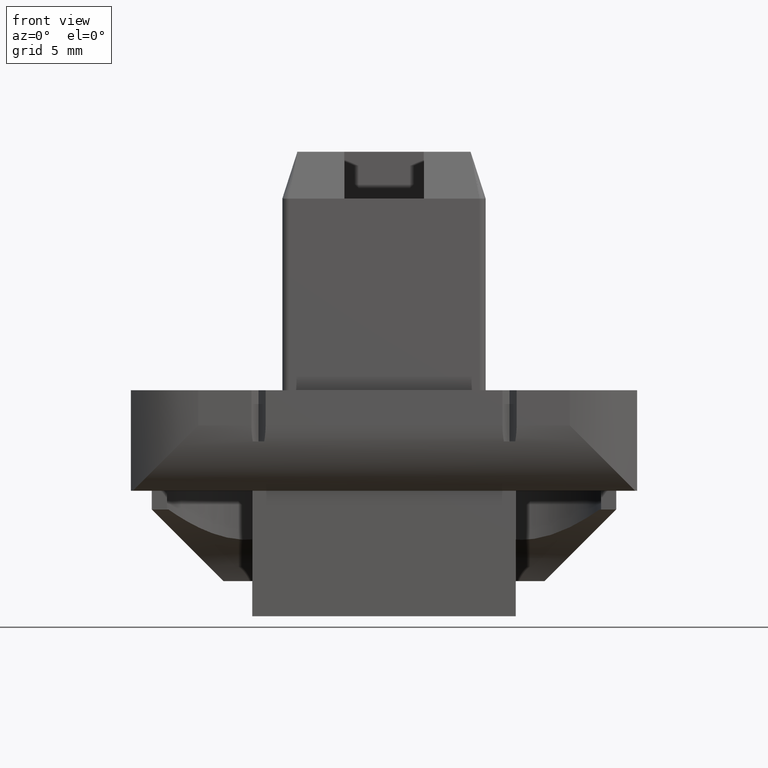
[diagram: clean part render]
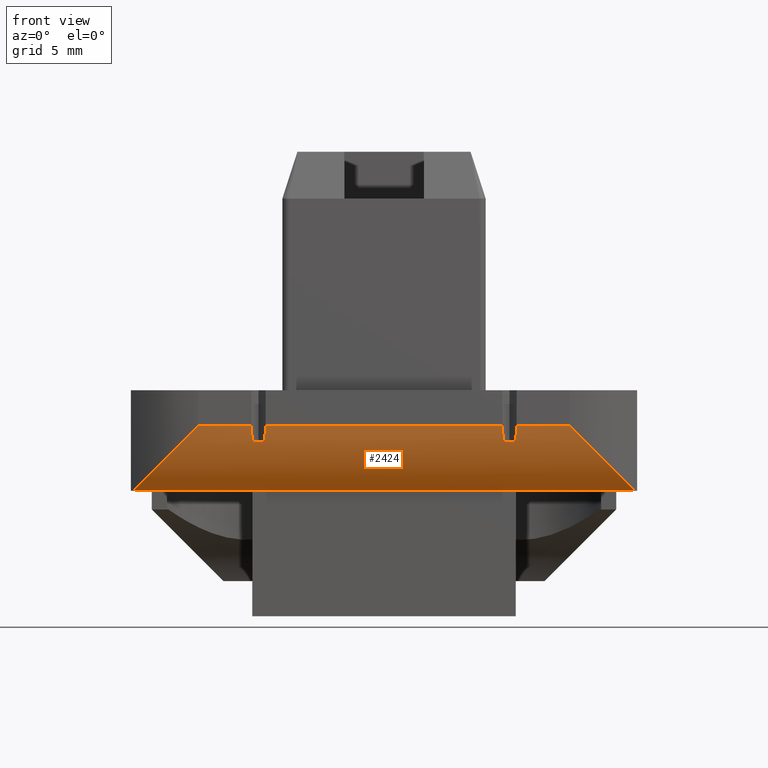
[diagram: same view with one face highlighted and labeled with its STEP entity id]
A machine part, front view. The second image highlights one B-rep face of the part: STEP entity #2424.
In plain terms, the highlighted cylindrical surface (partial cylindrical patch) has radius 7.2 mm, axis along (-1, 0, 0).
Its self-contained STEP definition (entity closure, byte-faithful):
#646=CARTESIAN_POINT('',(-20.000000287660441,-3.779959486906443,10.000000040422265));
#647=VERTEX_POINT('',#646);
#655=CARTESIAN_POINT('',(-14.799999999717329,-5.999999814166940,15.200000118723892));
#656=VERTEX_POINT('',#655);
#657=CARTESIAN_POINT('',(-14.799999999717329,-5.999999674799891,15.200000118723892));
#658=CARTESIAN_POINT('',(-15.250644298641419,-5.999999686430827,14.749355819799348));
#659=CARTESIAN_POINT('',(-16.149694925146832,-5.915854934225826,13.850307594689866));
#660=CARTESIAN_POINT('',(-17.549310883579892,-5.511476772912197,12.450689448180469));
#661=CARTESIAN_POINT('',(-18.854993704625485,-4.816792600913022,11.145006873995726));
#662=CARTESIAN_POINT('',(-19.666471730259218,-4.128225077868677,10.333528642601436));
#663=CARTESIAN_POINT('',(-20.000000287660441,-3.779959486906442,10.000000040422265));
#664=B_SPLINE_CURVE_WITH_KNOTS('',3,(#657,#658,#659,#660,#661,#662,#663),.UNSPECIFIED.,.F.,.U.,(4,1,1,1,4),(0.0,1.913345295107791,3.812113671887405,6.046940341447570,7.808132492264156),.UNSPECIFIED.);
#665=EDGE_CURVE('',#656,#647,#664,.T.);
#691=CARTESIAN_POINT('',(-10.565685424666299,-5.999999535432692,15.200000118723892));
#692=VERTEX_POINT('',#691);
#693=CARTESIAN_POINT('',(-14.799999999717329,-5.999999535432692,15.200000118723866));
#694=DIRECTION('',(1.0,0.0,0.0));
#695=VECTOR('',#694,4.234314575051037);
#696=LINE('',#693,#695);
#697=EDGE_CURVE('',#656,#692,#696,.T.);
#722=CARTESIAN_POINT('',(14.800000000283035,-5.999999814166757,15.200000118723779));
#723=VERTEX_POINT('',#722);
#740=CARTESIAN_POINT('',(10.565685425232004,-5.999999535432692,15.200000118723779));
#741=VERTEX_POINT('',#740);
#748=CARTESIAN_POINT('',(10.565685425232004,-5.999999535432692,15.200000118723832));
#749=DIRECTION('',(1.0,0.0,0.0));
#750=VECTOR('',#749,4.234314575051030);
#751=LINE('',#748,#750);
#752=EDGE_CURVE('',#741,#723,#751,.T.);
#764=CARTESIAN_POINT('',(-9.434314574767996,-5.999999535432692,15.200000118723892));
#765=VERTEX_POINT('',#764);
#772=CARTESIAN_POINT('',(9.434314575333701,-5.999999535432692,15.200000118723779));
#773=VERTEX_POINT('',#772);
#774=CARTESIAN_POINT('',(-9.434314574767988,-5.999999535432692,15.200000118723858));
#775=DIRECTION('',(1.0,0.0,0.0));
#776=VECTOR('',#775,18.868629150101690);
#777=LINE('',#774,#776);
#778=EDGE_CURVE('',#765,#773,#777,.T.);
#820=CARTESIAN_POINT('',(20.000000288226147,-3.779959486906443,10.000000040422265));
#821=VERTEX_POINT('',#820);
#822=CARTESIAN_POINT('',(20.000000288226147,-3.779959486906273,10.000000040422265));
#823=CARTESIAN_POINT('',(19.666471730824924,-4.128225077868504,10.333528642601436));
#824=CARTESIAN_POINT('',(18.854993705190282,-4.816792600912875,11.145006873995158));
#825=CARTESIAN_POINT('',(17.549310884143779,-5.511476772911907,12.450689448179787));
#826=CARTESIAN_POINT('',(16.149694925713447,-5.915854934225632,13.850307594688388));
#827=CARTESIAN_POINT('',(15.250644299208034,-5.999999686430661,14.749355819799121));
#828=CARTESIAN_POINT('',(14.800000000283035,-5.999999674799725,15.200000118723779));
#829=B_SPLINE_CURVE_WITH_KNOTS('',3,(#822,#823,#824,#825,#826,#827,#828),.UNSPECIFIED.,.F.,.U.,(4,1,1,1,4),(0.0,1.761192150816517,3.996018820376239,5.894787197155369,7.808132492264047),.UNSPECIFIED.);
#830=EDGE_CURVE('',#821,#723,#829,.T.);
#2353=CARTESIAN_POINT('',(20.000000288226147,-3.779959486906472,10.000000040422378));
#2354=DIRECTION('',(-1.0,0.0,0.0));
#2355=VECTOR('',#2354,40.000000575886588);
#2356=LINE('',#2353,#2355);
#2357=EDGE_CURVE('',#821,#647,#2356,.T.);
#2363=CARTESIAN_POINT('',(-36.266847991942996,1.200000464567296,15.199999932895139));
#2364=DIRECTION('',(-1.0,0.0,0.0));
#2365=DIRECTION('',(0.0,-0.666666724617046,-0.745355940667531));
#2366=AXIS2_PLACEMENT_3D('',#2363,#2364,#2365);
#2367=CYLINDRICAL_SURFACE('',#2366,7.199999999999990);
#2368=ORIENTED_EDGE('',*,*,#830,.T.);
#2369=ORIENTED_EDGE('',*,*,#752,.F.);
#2370=CARTESIAN_POINT('',(10.452199854460559,-5.886514234837638,13.926693443821250));
#2371=VERTEX_POINT('',#2370);
#2372=CARTESIAN_POINT('',(3.365687774459730,1.200000464567296,15.199999932895139));
#2373=DIRECTION('',(-0.707106910231620,-0.707106652141451,0.000000018250118));
#2374=DIRECTION('',(0.707106652141451,-0.707106910231620,0.000000018250125));
#2375=AXIS2_PLACEMENT_3D('',#2372,#2373,#2374);
#2376=ELLIPSE('',#2375,10.182335790837561,7.199999999999990);
#2377=EDGE_CURVE('',#2371,#741,#2376,.T.);
#2378=ORIENTED_EDGE('',*,*,#2377,.F.);
#2379=CARTESIAN_POINT('',(9.547800146105146,-5.886514234837638,13.926693443821250));
#2380=VERTEX_POINT('',#2379);
#2381=CARTESIAN_POINT('',(9.547800146105146,-5.886514234837646,13.926693443821250));
#2382=DIRECTION('',(1.0,0.0,0.0));
#2383=VECTOR('',#2382,0.904399708355413);
#2384=LINE('',#2381,#2383);
#2385=EDGE_CURVE('',#2380,#2371,#2384,.T.);
#2386=ORIENTED_EDGE('',*,*,#2385,.F.);
#2387=CARTESIAN_POINT('',(16.634312226105976,1.200000464567299,15.199999932895139));
#2388=DIRECTION('',(0.707106910231620,-0.707106652141451,0.000000018250118));
#2389=DIRECTION('',(0.707106652141451,0.707106910231620,-0.000000018250125));
#2390=AXIS2_PLACEMENT_3D('',#2387,#2388,#2389);
#2391=ELLIPSE('',#2390,10.182335790837561,7.199999999999990);
#2392=EDGE_CURVE('',#773,#2380,#2391,.T.);
#2393=ORIENTED_EDGE('',*,*,#2392,.F.);
#2394=ORIENTED_EDGE('',*,*,#778,.F.);
#2395=CARTESIAN_POINT('',(-9.547800145539441,-5.886514234837638,13.926693443821250));
#2396=VERTEX_POINT('',#2395);
#2397=CARTESIAN_POINT('',(-16.634312225541180,1.200000464567299,15.199999932895139));
#2398=DIRECTION('',(-0.707106910231620,-0.707106652141451,0.000000018250118));
#2399=DIRECTION('',(0.707106652141451,-0.707106910231620,0.000000018250125));
#2400=AXIS2_PLACEMENT_3D('',#2397,#2398,#2399);
#2401=ELLIPSE('',#2400,10.182335790837561,7.199999999999990);
#2402=EDGE_CURVE('',#2396,#765,#2401,.T.);
#2403=ORIENTED_EDGE('',*,*,#2402,.F.);
#2404=CARTESIAN_POINT('',(-10.452199853894854,-5.886514234837638,13.926693443821250));
#2405=VERTEX_POINT('',#2404);
#2406=CARTESIAN_POINT('',(-10.452199853894854,-5.886514234837646,13.926693443821250));
#2407=DIRECTION('',(1.0,0.0,0.0));
#2408=VECTOR('',#2407,0.904399708355413);
#2409=LINE('',#2406,#2408);
#2410=EDGE_CURVE('',#2405,#2396,#2409,.T.);
#2411=ORIENTED_EDGE('',*,*,#2410,.F.);
#2412=CARTESIAN_POINT('',(-3.365687773893115,1.200000464567296,15.199999932895139));
#2413=DIRECTION('',(0.707106910231620,-0.707106652141451,0.000000018250118));
#2414=DIRECTION('',(0.707106652141451,0.707106910231620,-0.000000018250125));
#2415=AXIS2_PLACEMENT_3D('',#2412,#2413,#2414);
#2416=ELLIPSE('',#2415,10.182335790837561,7.199999999999990);
#2417=EDGE_CURVE('',#692,#2405,#2416,.T.);
#2418=ORIENTED_EDGE('',*,*,#2417,.F.);
#2419=ORIENTED_EDGE('',*,*,#697,.F.);
#2420=ORIENTED_EDGE('',*,*,#665,.T.);
#2421=ORIENTED_EDGE('',*,*,#2357,.F.);
#2422=EDGE_LOOP('',(#2368,#2369,#2378,#2386,#2393,#2394,#2403,#2411,#2418,#2419,#2420,#2421));
#2423=FACE_OUTER_BOUND('',#2422,.T.);
#2424=ADVANCED_FACE('',(#2423),#2367,.T.);